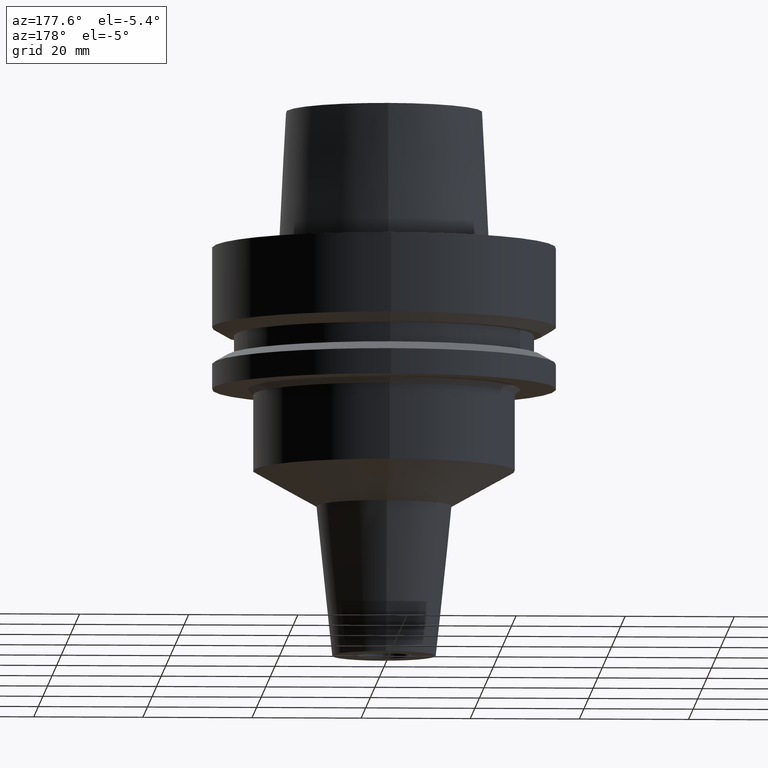
[diagram: clean part render]
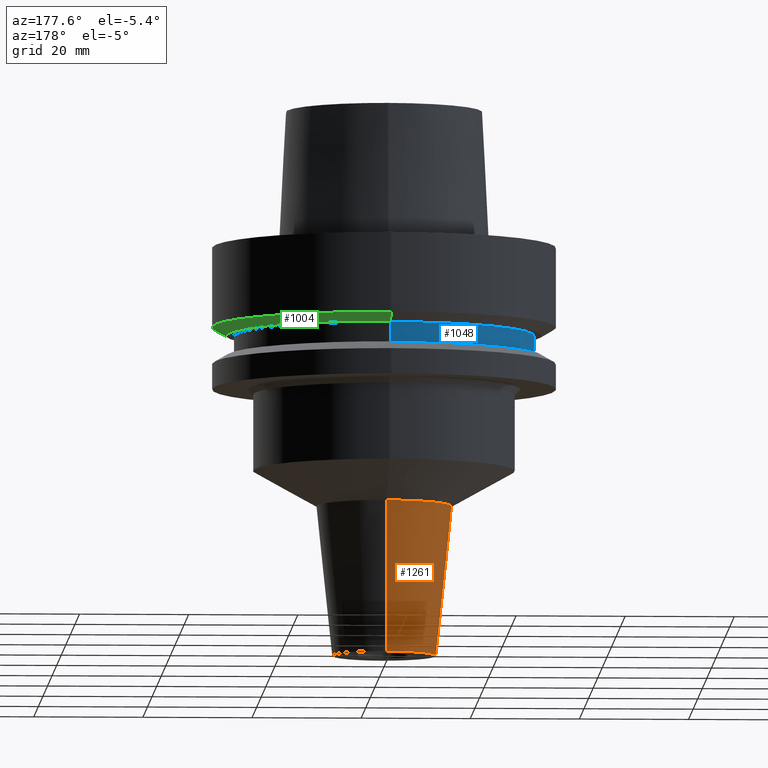
[diagram: same view with three faces highlighted in distinct colors, each labeled with its STEP entity id]
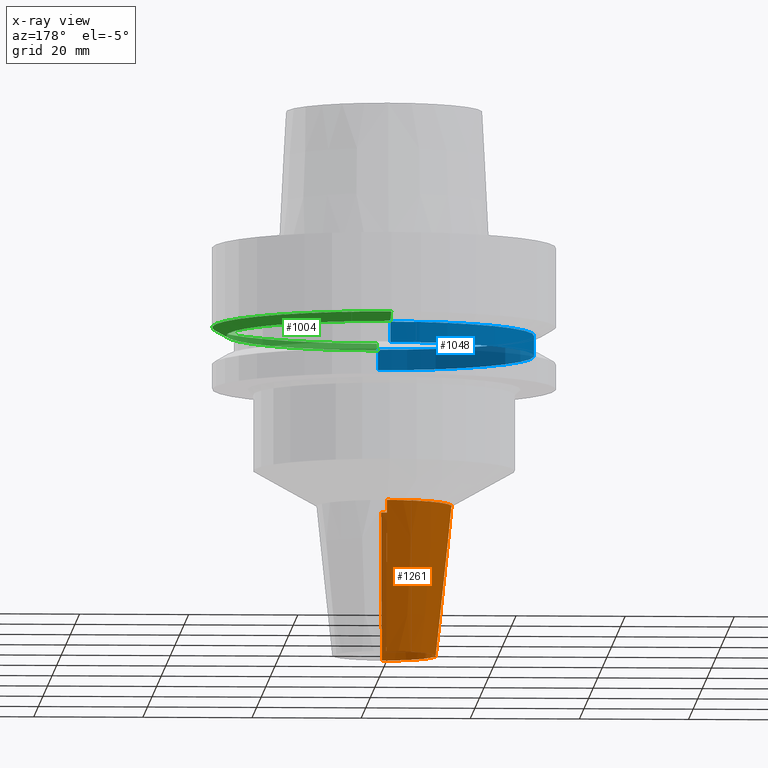
[diagram: x-ray of the same camera — body ghosted, the three highlighted faces saturated]
A machine part, auxiliary view with three faces highlighted in distinct colors.
The next image is the same camera in x-ray (body ghosted, the three faces saturated) — at least one of them is partly hidden behind the body in this view.
Their STEP definitions:

[orange] entity #1261 — the highlighted conical surface has half-angle 6 deg.
#353=CARTESIAN_POINT('',(0.E0,0.E0,-4.748768125692E1));
#354=DIRECTION('',(0.E0,0.E0,-1.E0));
#355=DIRECTION('',(0.E0,-1.E0,0.E0));
#356=AXIS2_PLACEMENT_3D('',#353,#354,#355);
#376=DIRECTION('',(0.E0,-1.045284632677E-1,-9.945218953683E-1));
#377=VECTOR('',#376,2.766386428615E1);
#378=CARTESIAN_POINT('',(0.E0,1.239166122188E1,-4.748768125693E1));
#379=LINE('',#378,#377);
#391=DIRECTION('',(0.E0,1.045284632677E-1,-9.945218953683E-1));
#392=VECTOR('',#391,2.766386428615E1);
#393=CARTESIAN_POINT('',(0.E0,-1.239166122188E1,-4.748768125693E1));
#394=LINE('',#393,#392);
#406=CARTESIAN_POINT('',(0.E0,0.E0,-7.5E1));
#407=DIRECTION('',(0.E0,0.E0,1.E0));
#408=DIRECTION('',(0.E0,1.E0,0.E0));
#409=AXIS2_PLACEMENT_3D('',#406,#407,#408);
#844=CARTESIAN_POINT('',(0.E0,-9.500000000002E0,-7.5E1));
#845=CARTESIAN_POINT('',(0.E0,9.500000000002E0,-7.5E1));
#846=VERTEX_POINT('',#844);
#847=VERTEX_POINT('',#845);
#848=CARTESIAN_POINT('',(0.E0,1.239166122188E1,-4.748768125693E1));
#849=VERTEX_POINT('',#848);
#850=CARTESIAN_POINT('',(0.E0,-1.239166122188E1,-4.748768125693E1));
#851=VERTEX_POINT('',#850);
#1249=CARTESIAN_POINT('',(0.E0,0.E0,-6.124384062846E1));
#1250=DIRECTION('',(0.E0,0.E0,1.E0));
#1251=DIRECTION('',(0.E0,1.E0,0.E0));
#1252=AXIS2_PLACEMENT_3D('',#1249,#1250,#1251);
#1253=CONICAL_SURFACE('',#1252,1.094583061094E1,6.E0);
#1254=ORIENTED_EDGE('',*,*,#1239,.F.);
#1255=ORIENTED_EDGE('',*,*,#1216,.F.);
#1256=ORIENTED_EDGE('',*,*,#1243,.T.);
#1258=ORIENTED_EDGE('',*,*,#1257,.F.);
#1259=EDGE_LOOP('',(#1254,#1255,#1256,#1258));
#1260=FACE_OUTER_BOUND('',#1259,.F.);
#357=CIRCLE('',#356,1.239166122188E1);
#410=CIRCLE('',#409,9.500000000002E0);
#1216=EDGE_CURVE('',#851,#849,#357,.T.);
#1239=EDGE_CURVE('',#849,#847,#379,.T.);
#1243=EDGE_CURVE('',#851,#846,#394,.T.);
#1257=EDGE_CURVE('',#847,#846,#410,.T.);
#1261=ADVANCED_FACE('',(#1260),#1253,.T.);

[blue] entity #1048 — the highlighted cylindrical surface (partial cylindrical patch) has radius 27.5 mm, axis along (0, 0, -1).
#156=CARTESIAN_POINT('',(0.E0,0.E0,-1.6125E1));
#157=DIRECTION('',(0.E0,0.E0,-1.E0));
#158=DIRECTION('',(0.E0,-1.E0,0.E0));
#159=AXIS2_PLACEMENT_3D('',#156,#157,#158);
#172=DIRECTION('',(0.E0,0.E0,-1.E0));
#173=VECTOR('',#172,3.75E0);
#174=CARTESIAN_POINT('',(0.E0,-2.75E1,-1.6125E1));
#175=LINE('',#174,#173);
#179=DIRECTION('',(0.E0,0.E0,-1.E0));
#180=VECTOR('',#179,3.75E0);
#181=CARTESIAN_POINT('',(0.E0,2.75E1,-1.6125E1));
#182=LINE('',#181,#180);
#210=CARTESIAN_POINT('',(0.E0,0.E0,-1.9875E1));
#211=DIRECTION('',(0.E0,0.E0,1.E0));
#212=DIRECTION('',(0.E0,1.E0,0.E0));
#213=AXIS2_PLACEMENT_3D('',#210,#211,#212);
#876=CARTESIAN_POINT('',(0.E0,-2.75E1,-1.9875E1));
#877=CARTESIAN_POINT('',(0.E0,2.75E1,-1.9875E1));
#878=VERTEX_POINT('',#876);
#879=VERTEX_POINT('',#877);
#880=CARTESIAN_POINT('',(0.E0,2.75E1,-1.6125E1));
#881=VERTEX_POINT('',#880);
#882=CARTESIAN_POINT('',(0.E0,-2.75E1,-1.6125E1));
#883=VERTEX_POINT('',#882);
#1034=CARTESIAN_POINT('',(0.E0,0.E0,3.E1));
#1035=DIRECTION('',(0.E0,0.E0,-1.E0));
#1036=DIRECTION('',(0.E0,-1.E0,0.E0));
#1037=AXIS2_PLACEMENT_3D('',#1034,#1035,#1036);
#1038=CYLINDRICAL_SURFACE('',#1037,2.75E1);
#1040=ORIENTED_EDGE('',*,*,#1039,.F.);
#1041=ORIENTED_EDGE('',*,*,#1027,.F.);
#1043=ORIENTED_EDGE('',*,*,#1042,.T.);
#1045=ORIENTED_EDGE('',*,*,#1044,.F.);
#1046=EDGE_LOOP('',(#1040,#1041,#1043,#1045));
#1047=FACE_OUTER_BOUND('',#1046,.F.);
#160=CIRCLE('',#159,2.75E1);
#214=CIRCLE('',#213,2.75E1);
#1027=EDGE_CURVE('',#883,#881,#160,.T.);
#1039=EDGE_CURVE('',#881,#879,#182,.T.);
#1042=EDGE_CURVE('',#883,#878,#175,.T.);
#1044=EDGE_CURVE('',#879,#878,#214,.T.);
#1048=ADVANCED_FACE('',(#1047),#1038,.T.);

[green] entity #1004 — the highlighted conical surface has half-angle 60 deg.
#110=DIRECTION('',(0.E0,-8.660254037844E-1,-5.000000000001E-1));
#111=VECTOR('',#110,3.004998149520E0);
#112=CARTESIAN_POINT('',(0.E0,3.15E1,-1.462250092524E1));
#113=LINE('',#112,#111);
#117=CARTESIAN_POINT('',(0.E0,0.E0,-1.462250092524E1));
#118=DIRECTION('',(0.E0,0.E0,1.E0));
#119=DIRECTION('',(0.E0,-1.E0,0.E0));
#120=AXIS2_PLACEMENT_3D('',#117,#118,#119);
#133=DIRECTION('',(0.E0,8.660254037844E-1,-5.000000000001E-1));
#134=VECTOR('',#133,3.004998149520E0);
#135=CARTESIAN_POINT('',(0.E0,-3.15E1,-1.462250092524E1));
#136=LINE('',#135,#134);
#140=CARTESIAN_POINT('',(0.E0,0.E0,-1.6125E1));
#141=DIRECTION('',(0.E0,0.E0,1.E0));
#142=DIRECTION('',(0.E0,-1.E0,0.E0));
#143=AXIS2_PLACEMENT_3D('',#140,#141,#142);
#884=CARTESIAN_POINT('',(0.E0,-2.889759526419E1,-1.6125E1));
#885=CARTESIAN_POINT('',(0.E0,2.889759526419E1,-1.6125E1));
#886=VERTEX_POINT('',#884);
#887=VERTEX_POINT('',#885);
#888=CARTESIAN_POINT('',(0.E0,3.15E1,-1.462250092524E1));
#889=VERTEX_POINT('',#888);
#890=CARTESIAN_POINT('',(0.E0,-3.15E1,-1.462250092524E1));
#891=VERTEX_POINT('',#890);
#990=CARTESIAN_POINT('',(0.E0,0.E0,-1.537375046262E1));
#991=DIRECTION('',(0.E0,0.E0,1.E0));
#992=DIRECTION('',(0.E0,1.E0,0.E0));
#993=AXIS2_PLACEMENT_3D('',#990,#991,#992);
#994=CONICAL_SURFACE('',#993,3.019879763210E1,6.E1);
#996=ORIENTED_EDGE('',*,*,#995,.T.);
#998=ORIENTED_EDGE('',*,*,#997,.F.);
#1000=ORIENTED_EDGE('',*,*,#999,.F.);
#1001=ORIENTED_EDGE('',*,*,#983,.T.);
#1002=EDGE_LOOP('',(#996,#998,#1000,#1001));
#1003=FACE_OUTER_BOUND('',#1002,.F.);
#121=CIRCLE('',#120,3.15E1);
#144=CIRCLE('',#143,2.889759526419E1);
#983=EDGE_CURVE('',#891,#889,#121,.T.);
#995=EDGE_CURVE('',#889,#887,#113,.T.);
#997=EDGE_CURVE('',#886,#887,#144,.T.);
#999=EDGE_CURVE('',#891,#886,#136,.T.);
#1004=ADVANCED_FACE('',(#1003),#994,.T.);